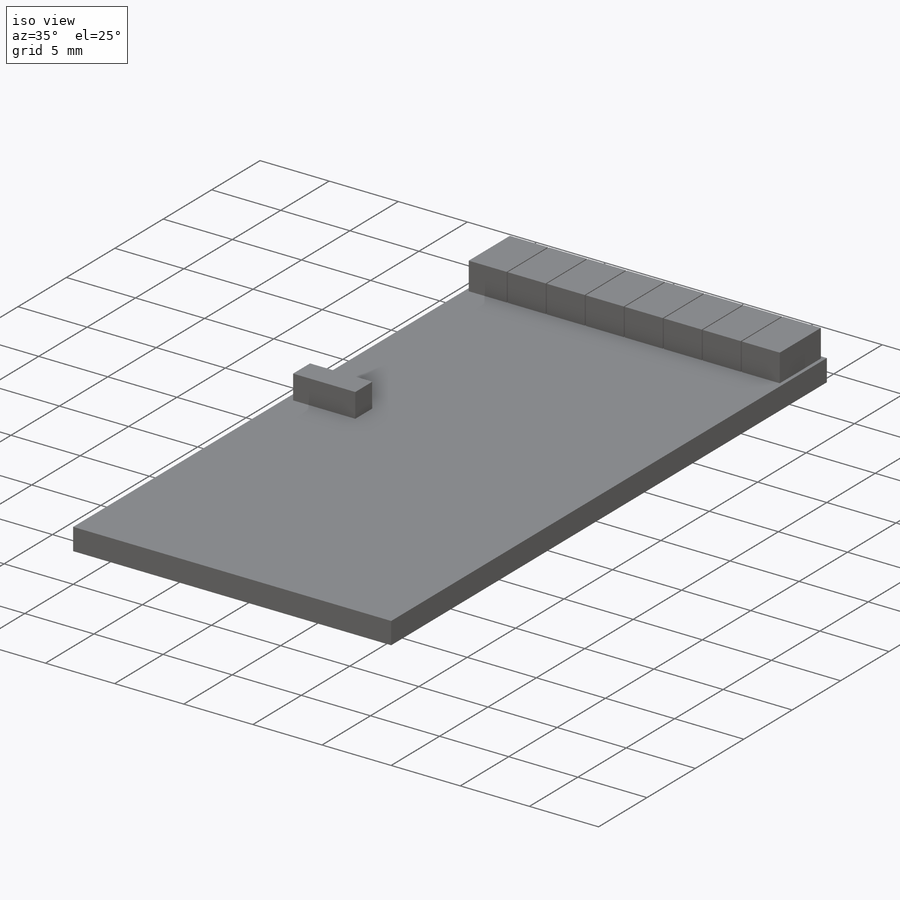
[diagram: iso view]
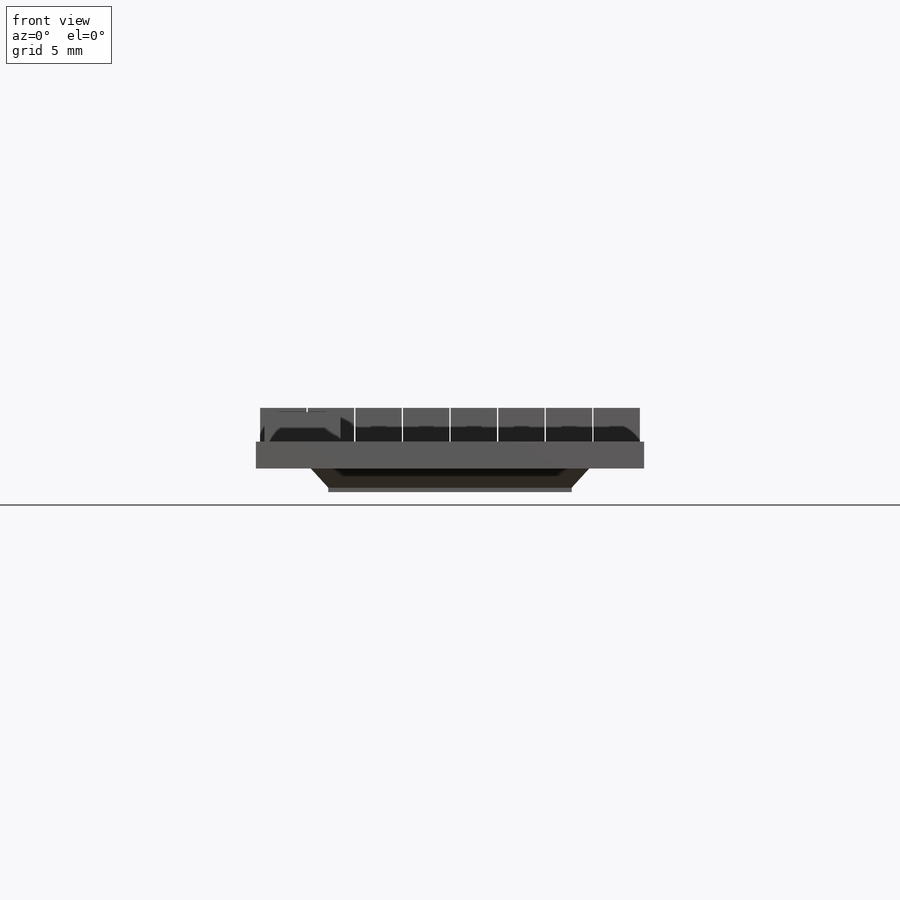
[diagram: front view]
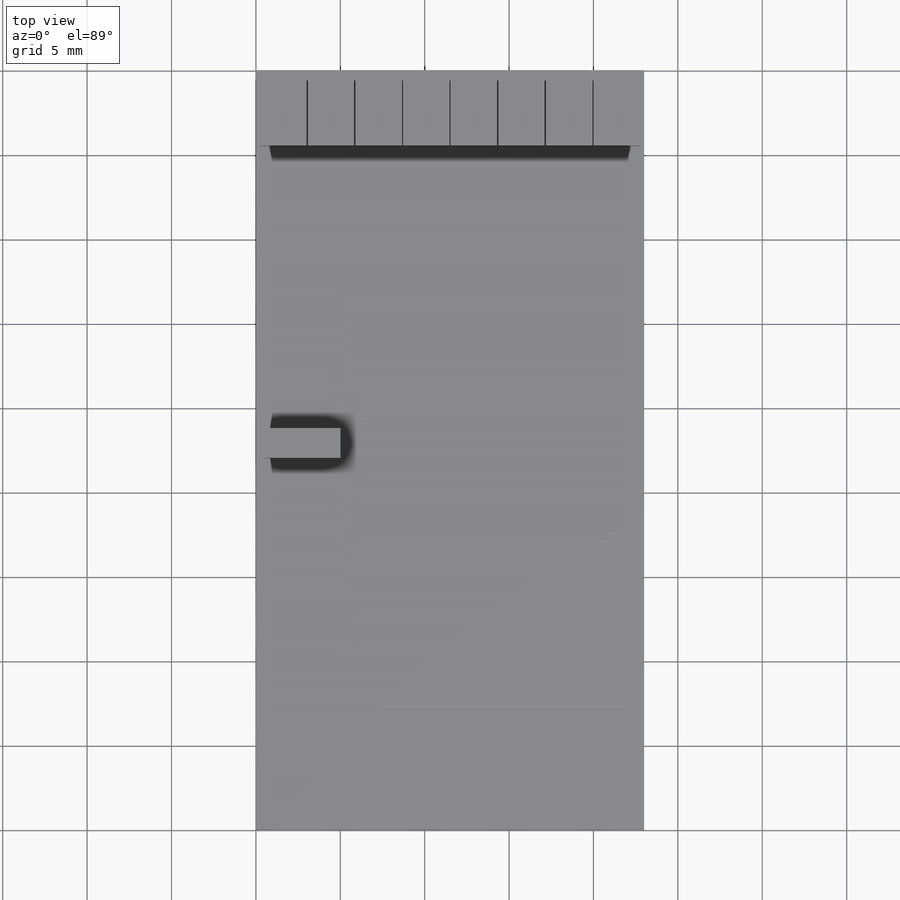
[diagram: top view]
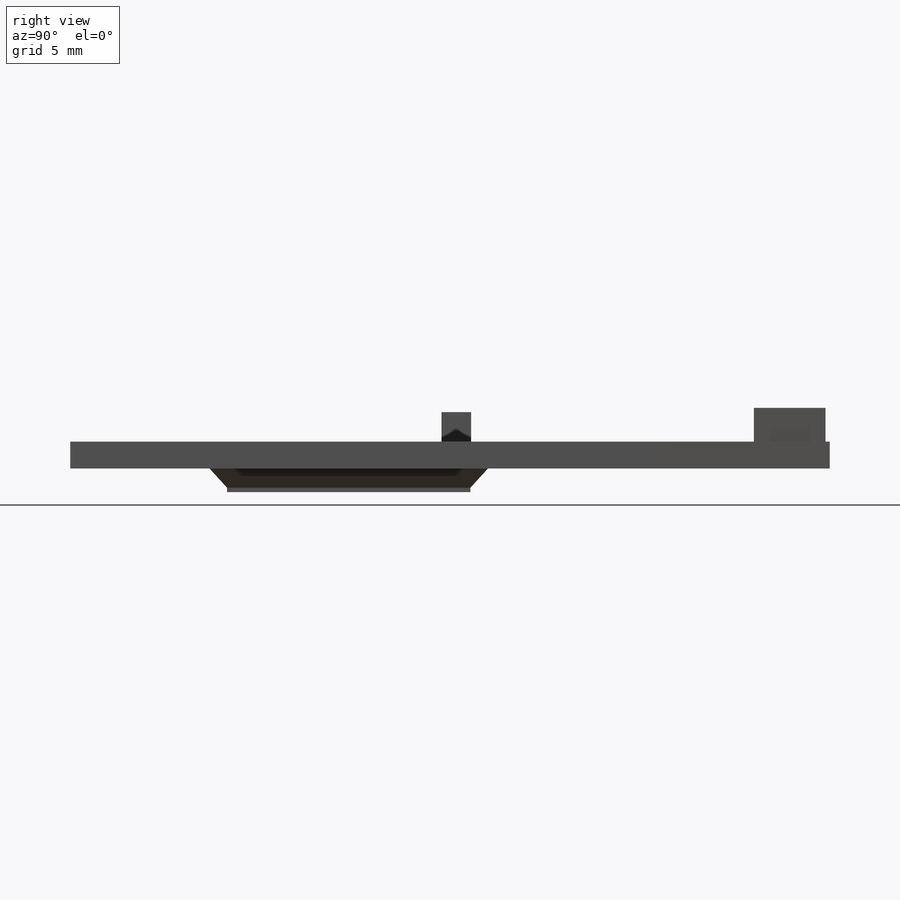
[diagram: right view]
SOLIDWORKS PART (.sldprt)
format: sldprt  version: not decoded by parser v0  size: 377,344 bytes
history: native  units: mm
features: sketch x5, extrude x5, material x1 (+11 scaffold rows collapsed)
feature tree (22):
  scaffold x11  (default folders/planes/origin — collapsed)
  material  "Material <not specified>"
  sketch  "Sketch1"
  extrude  "Boss-Extrude1"  Depth=1.5875mm
  sketch  "Sketch2"
  extrude  "Boss-Extrude2"  Depth=1.14mm
  sketch  "Sketch3"
  extrude  "Boss-Extrude3"  Depth=0.26mm
  sketch  "Sketch4"  dims[D1=8.0]
  extrude  "Boss-Extrude4"  Depth=2mm
  sketch  "Sketch5"
  extrude  "Boss-Extrude5"  Depth=1.75mm
decode coverage: 6 of 10 modeling features carry decoded parameters
note: suppression state not decoded; provenance and decode notes live in map.json
